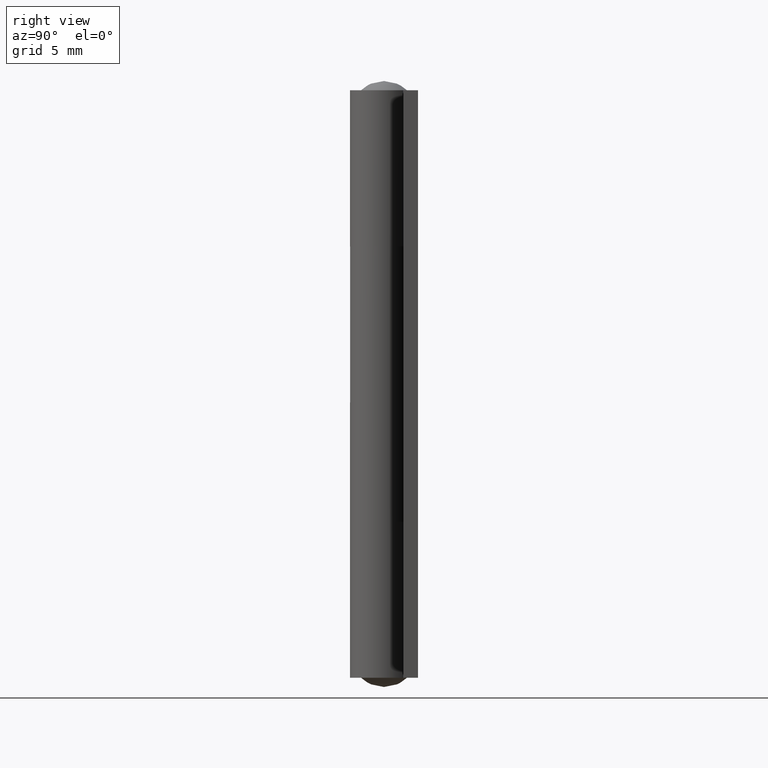
[diagram: clean part render]
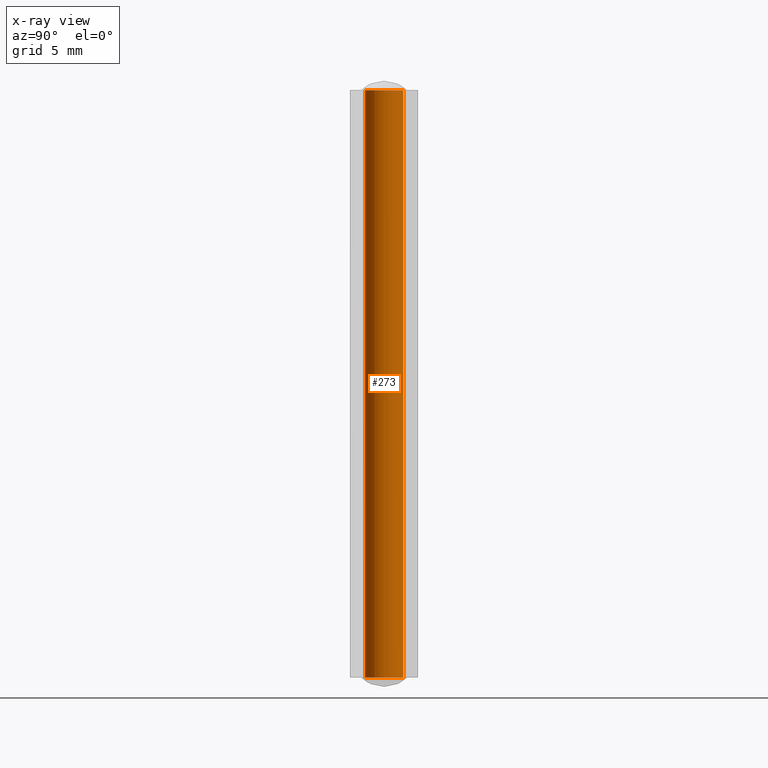
[diagram: x-ray — body ghosted, one internal face saturated and labeled with its STEP entity id]
A machine part, right view, then the same camera in x-ray: the body is ghosted and one INTERNAL B-rep face — a face not visible from any outside direction — is saturated and labeled: STEP entity #273.
In plain terms, the highlighted face is a freeform B-spline surface patch.
Its self-contained STEP definition (entity closure, byte-faithful):
#87=CARTESIAN_POINT('',(0.064100966541081,-1.048041538341157,32.000006999999997));
#88=VERTEX_POINT('',#87);
#102=CARTESIAN_POINT('',(-0.064100966541081,1.048041538341157,32.000006999999997));
#103=VERTEX_POINT('',#102);
#119=CARTESIAN_POINT('',(-1.050000000000000,0.0,32.000006999999997));
#120=VERTEX_POINT('',#119);
#121=CARTESIAN_POINT('',(-1.050000000000000,0.0,32.000006999999997));
#122=CARTESIAN_POINT('',(-1.050000000000000,0.987741370223143,32.000006999999997));
#123=CARTESIAN_POINT('',(-0.064100966541081,1.048041538341157,32.000006999999997));
#131=(BOUNDED_CURVE()B_SPLINE_CURVE(2,(#121,#122,#123),.UNSPECIFIED.,.F.,.U.)B_SPLINE_CURVE_WITH_KNOTS((3,3),(0.0,0.239332962237115),.UNSPECIFIED.)CURVE()GEOMETRIC_REPRESENTATION_ITEM()RATIONAL_B_SPLINE_CURVE((1.0,0.719603993288852,0.976072041662799))REPRESENTATION_ITEM(''));
#132=EDGE_CURVE('',#120,#103,#131,.T.);
#134=CARTESIAN_POINT('',(0.064100966541081,-1.048041538341157,32.000006999999997));
#135=CARTESIAN_POINT('',(0.032080401478300,-1.050000000000000,32.000007000000004));
#136=CARTESIAN_POINT('',(0.0,-1.050000000000000,32.000006999999997));
#137=CARTESIAN_POINT('',(-1.050000000000000,-1.050000000000000,32.000006999999997));
#138=CARTESIAN_POINT('',(-1.050000000000000,0.0,32.000006999999997));
#146=(BOUNDED_CURVE()B_SPLINE_CURVE(2,(#134,#135,#136,#137,#138),.UNSPECIFIED.,.F.,.U.)B_SPLINE_CURVE_WITH_KNOTS((3,2,3),(0.739332962237115,0.750000000000000,1.0),.UNSPECIFIED.)CURVE()GEOMETRIC_REPRESENTATION_ITEM()RATIONAL_B_SPLINE_CURVE((0.976072041662799,0.987502787897695,1.0,0.707106781186548,1.0))REPRESENTATION_ITEM(''));
#147=EDGE_CURVE('',#88,#120,#146,.T.);
#172=CARTESIAN_POINT('',(0.064100966541081,-1.048041538341157,2.220446E-016));
#173=VERTEX_POINT('',#172);
#174=CARTESIAN_POINT('',(0.064100966541081,-1.048041538341157,32.000006999999997));
#175=CARTESIAN_POINT('',(0.064100966541081,-1.048041538341157,2.220446E-016));
#176=QUASI_UNIFORM_CURVE('',1,(#174,#175),.UNSPECIFIED.,.F.,.U.);
#177=EDGE_CURVE('',#88,#173,#176,.T.);
#194=CARTESIAN_POINT('',(-0.064100966541081,1.048041538341157,2.220446E-016));
#195=VERTEX_POINT('',#194);
#211=CARTESIAN_POINT('',(-0.064100966541081,1.048041538341157,32.000006999999997));
#212=CARTESIAN_POINT('',(-0.064100966541081,1.048041538341157,2.220446E-016));
#213=QUASI_UNIFORM_CURVE('',1,(#211,#212),.UNSPECIFIED.,.F.,.U.);
#214=EDGE_CURVE('',#103,#195,#213,.T.);
#219=CARTESIAN_POINT('',(0.064100966511600,-1.048041538342960,32.800007175000012));
#220=CARTESIAN_POINT('',(-0.983940571831360,-1.112142504854560,32.800007175000005));
#221=CARTESIAN_POINT('',(-1.048041538342960,-0.064100966511600,32.800007175000012));
#222=CARTESIAN_POINT('',(-1.112142504854560,0.983940571831360,32.800007175000005));
#223=CARTESIAN_POINT('',(-0.064100966511600,1.048041538342960,32.800007175000012));
#224=CARTESIAN_POINT('',(0.064100966511600,-1.048041538342960,-0.820000179375000));
#225=CARTESIAN_POINT('',(-0.983940571831360,-1.112142504854560,-0.820000179375001));
#226=CARTESIAN_POINT('',(-1.048041538342960,-0.064100966511600,-0.820000179375000));
#227=CARTESIAN_POINT('',(-1.112142504854560,0.983940571831360,-0.820000179375001));
#228=CARTESIAN_POINT('',(-0.064100966511600,1.048041538342960,-0.820000179375000));
#236=(BOUNDED_SURFACE()B_SPLINE_SURFACE(2,1,((#219,#224),(#220,#225),(#221,#226),(#222,#227),(#223,#228)),.UNSPECIFIED.,.F.,.F.,.U.)B_SPLINE_SURFACE_WITH_KNOTS((3,2,3),(2,2),(0.0,1.570796326794897,3.141592653589793),(0.0,33.620007354375012),.UNSPECIFIED.)GEOMETRIC_REPRESENTATION_ITEM()RATIONAL_B_SPLINE_SURFACE(((1.0,1.0),(0.707106781186548,0.707106781186548),(1.0,1.0),(0.707106781186548,0.707106781186548),(1.0,1.0)))REPRESENTATION_ITEM('')SURFACE());
#237=ORIENTED_EDGE('',*,*,#132,.T.);
#238=ORIENTED_EDGE('',*,*,#214,.T.);
#239=CARTESIAN_POINT('',(-1.050000000000000,0.0,0.0));
#240=VERTEX_POINT('',#239);
#241=CARTESIAN_POINT('',(-1.050000000000000,0.0,0.0));
#242=CARTESIAN_POINT('',(-1.050000000000000,0.987741370223143,0.0));
#243=CARTESIAN_POINT('',(-0.064100966541081,1.048041538341157,0.0));
#251=(BOUNDED_CURVE()B_SPLINE_CURVE(2,(#241,#242,#243),.UNSPECIFIED.,.F.,.U.)B_SPLINE_CURVE_WITH_KNOTS((3,3),(0.0,0.239332962237115),.UNSPECIFIED.)CURVE()GEOMETRIC_REPRESENTATION_ITEM()RATIONAL_B_SPLINE_CURVE((1.0,0.719603993288852,0.976072041662799))REPRESENTATION_ITEM(''));
#252=EDGE_CURVE('',#240,#195,#251,.T.);
#253=ORIENTED_EDGE('',*,*,#252,.F.);
#254=CARTESIAN_POINT('',(0.064100966541081,-1.048041538341157,0.0));
#255=CARTESIAN_POINT('',(0.032080401478300,-1.050000000000000,0.0));
#256=CARTESIAN_POINT('',(0.0,-1.050000000000000,0.0));
#257=CARTESIAN_POINT('',(-1.050000000000000,-1.050000000000000,0.0));
#258=CARTESIAN_POINT('',(-1.050000000000000,0.0,0.0));
#266=(BOUNDED_CURVE()B_SPLINE_CURVE(2,(#254,#255,#256,#257,#258),.UNSPECIFIED.,.F.,.U.)B_SPLINE_CURVE_WITH_KNOTS((3,2,3),(0.739332962237115,0.750000000000000,1.0),.UNSPECIFIED.)CURVE()GEOMETRIC_REPRESENTATION_ITEM()RATIONAL_B_SPLINE_CURVE((0.976072041662799,0.987502787897695,1.0,0.707106781186548,1.0))REPRESENTATION_ITEM(''));
#267=EDGE_CURVE('',#173,#240,#266,.T.);
#268=ORIENTED_EDGE('',*,*,#267,.F.);
#269=ORIENTED_EDGE('',*,*,#177,.F.);
#270=ORIENTED_EDGE('',*,*,#147,.T.);
#271=EDGE_LOOP('',(#237,#238,#253,#268,#269,#270));
#272=FACE_OUTER_BOUND('',#271,.T.);
#273=ADVANCED_FACE('',(#272),#236,.T.);